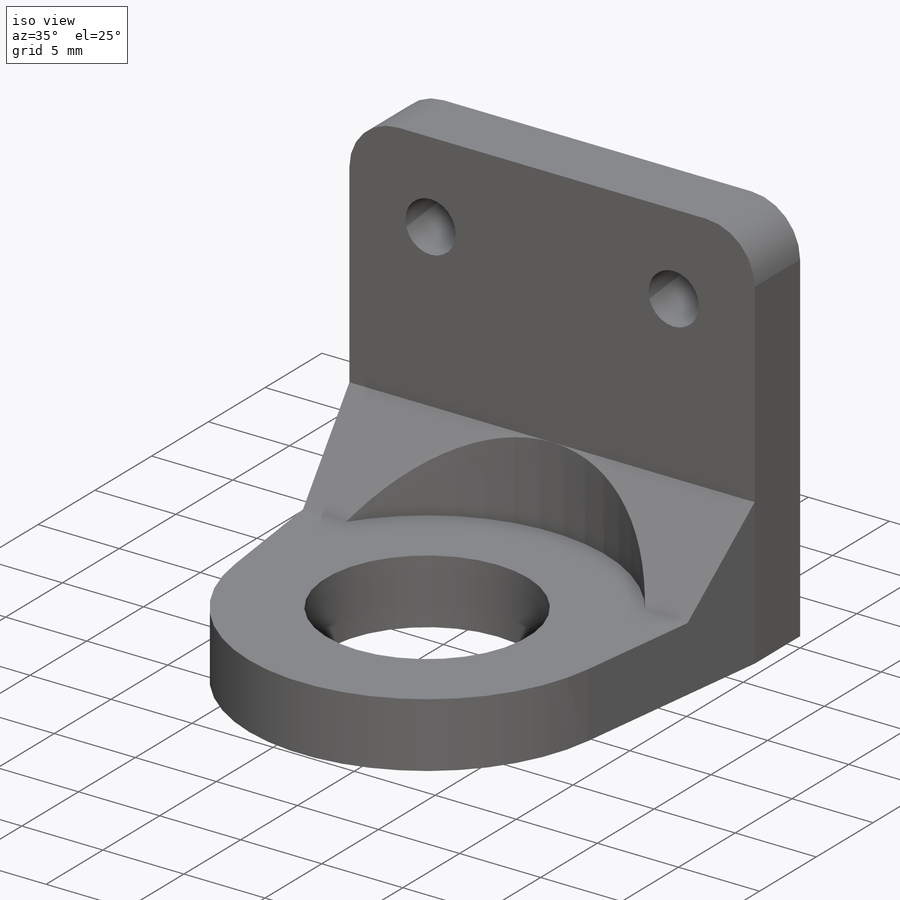
[diagram: iso view]
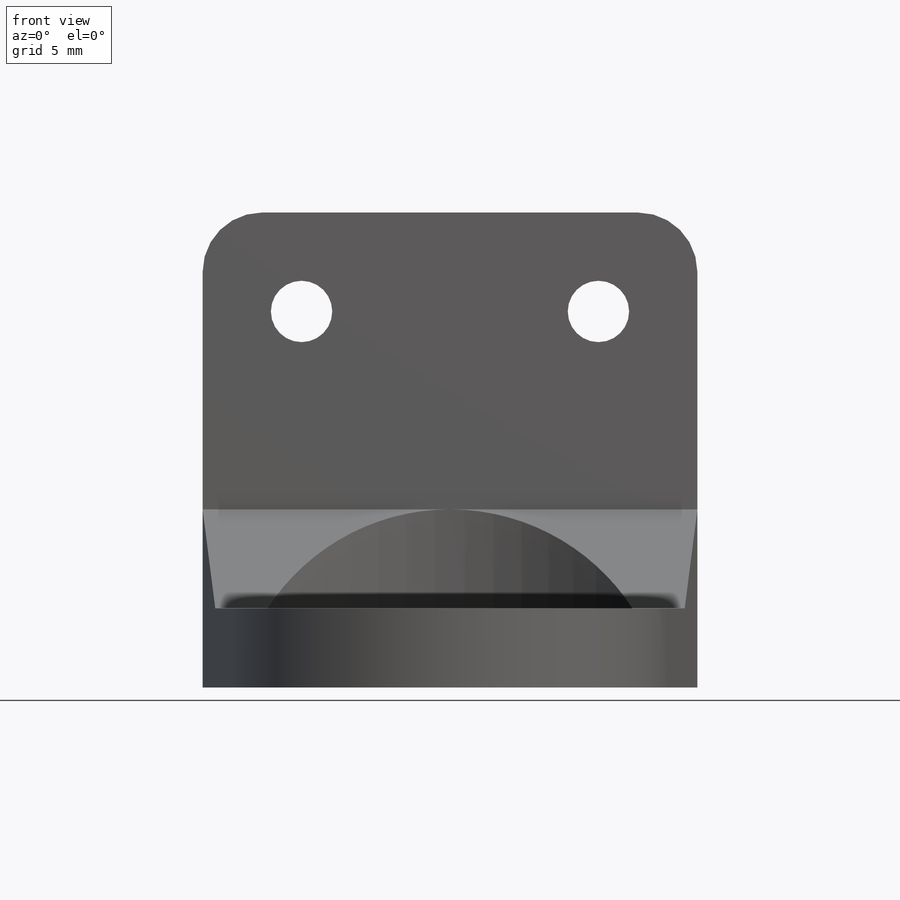
[diagram: front view]
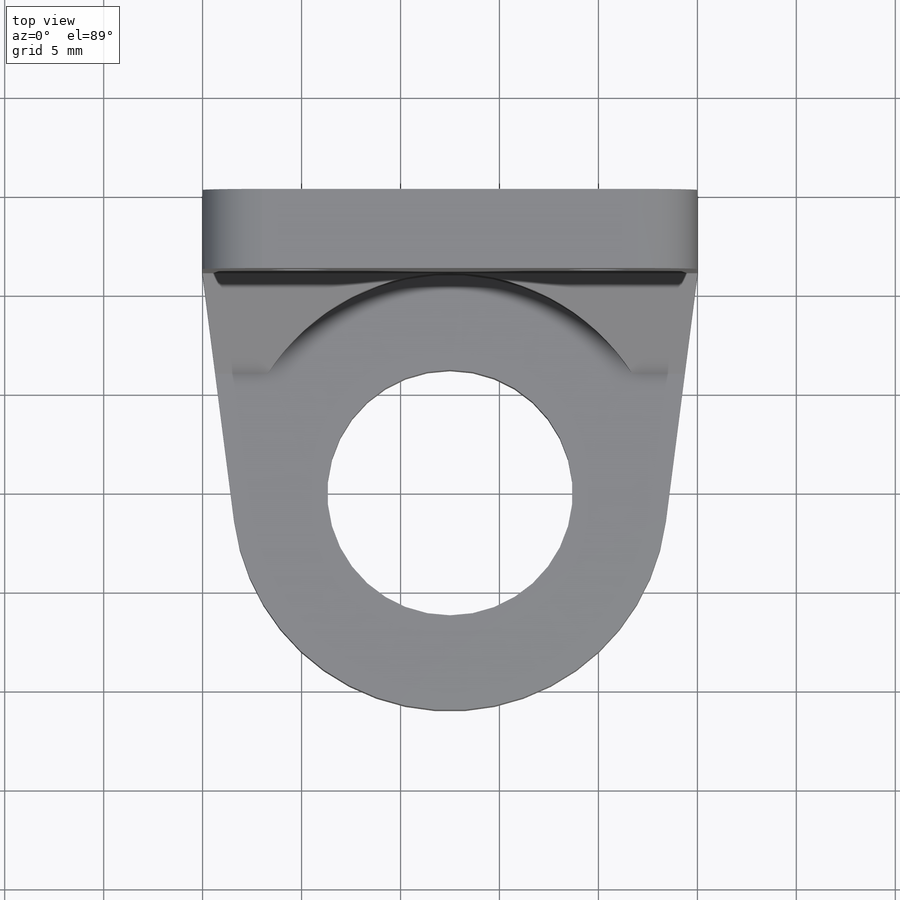
[diagram: top view]
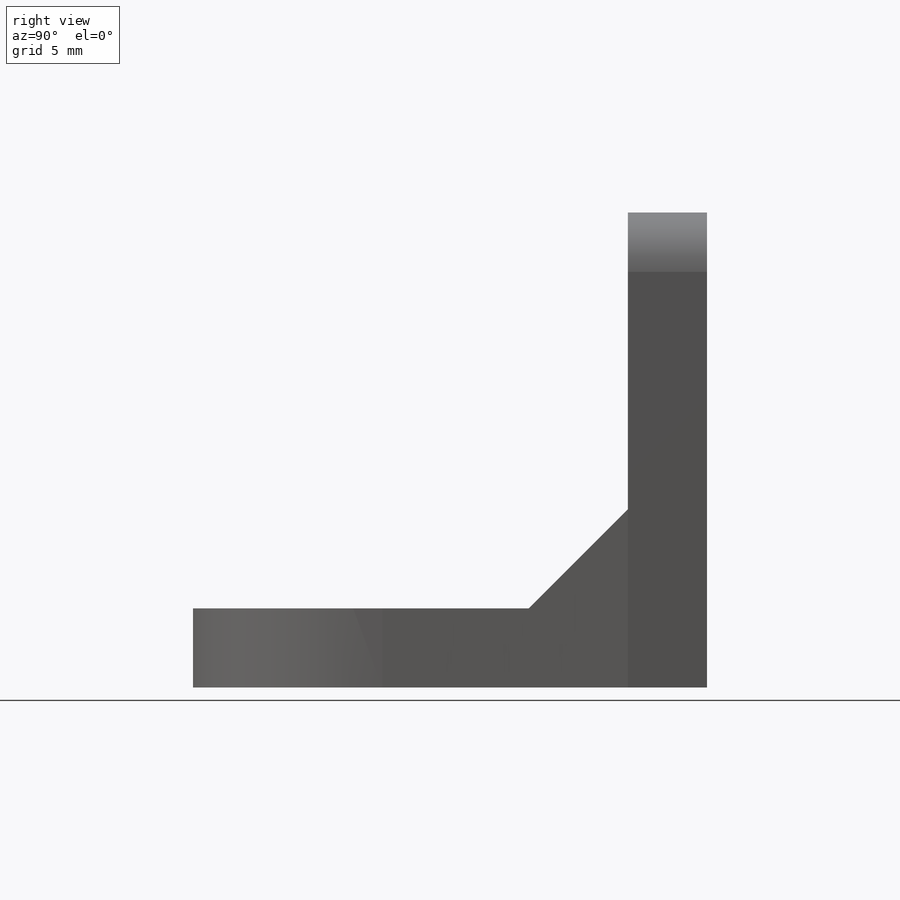
[diagram: right view]
SOLIDWORKS PART (.sldprt)
format: sldprt  version: not decoded by parser v0  size: 242,688 bytes
history: native  units: mm
features: sketch x5, extrude x3, cut_extrude x2, material x1, chamfer x1, fillet x1 (+13 scaffold rows collapsed)
feature tree (26):
  scaffold x13  (default folders/planes/origin — collapsed)
  material  "Material <not specified>"
  sketch  "Sketch1"  dims[D1=0.0mm]
  extrude  "Boss-Extrude1"  Depth=4mm
  sketch  "Sketch2"  dims[D1=0.0mm]
  extrude  "Boss-Extrude2"  Depth=10mm
  sketch  "Sketch3"  dims[c1.D2=12.4mm c1.D3=12.0mm c1.D4=10.5mm c2.D2=11.0mm c2.D1=0.2mm]
  extrude  "Boss-Extrude3"  Depth=4mm
  chamfer  "Chamfer1"  Distance=5mm Angle=45deg
  sketch  "Sketch4"
  cut_extrude  "Cut-Extrude1"  Depth=10mm
  fillet  "Fillet1"  Radius=3mm
  sketch  "Sketch5"  dims[D1=5.7mm]
  cut_extrude  "Cut-Extrude2"  Depth=2mm
decode coverage: 11 of 12 modeling features carry decoded parameters
note: suppression state not decoded; provenance and decode notes live in map.json
